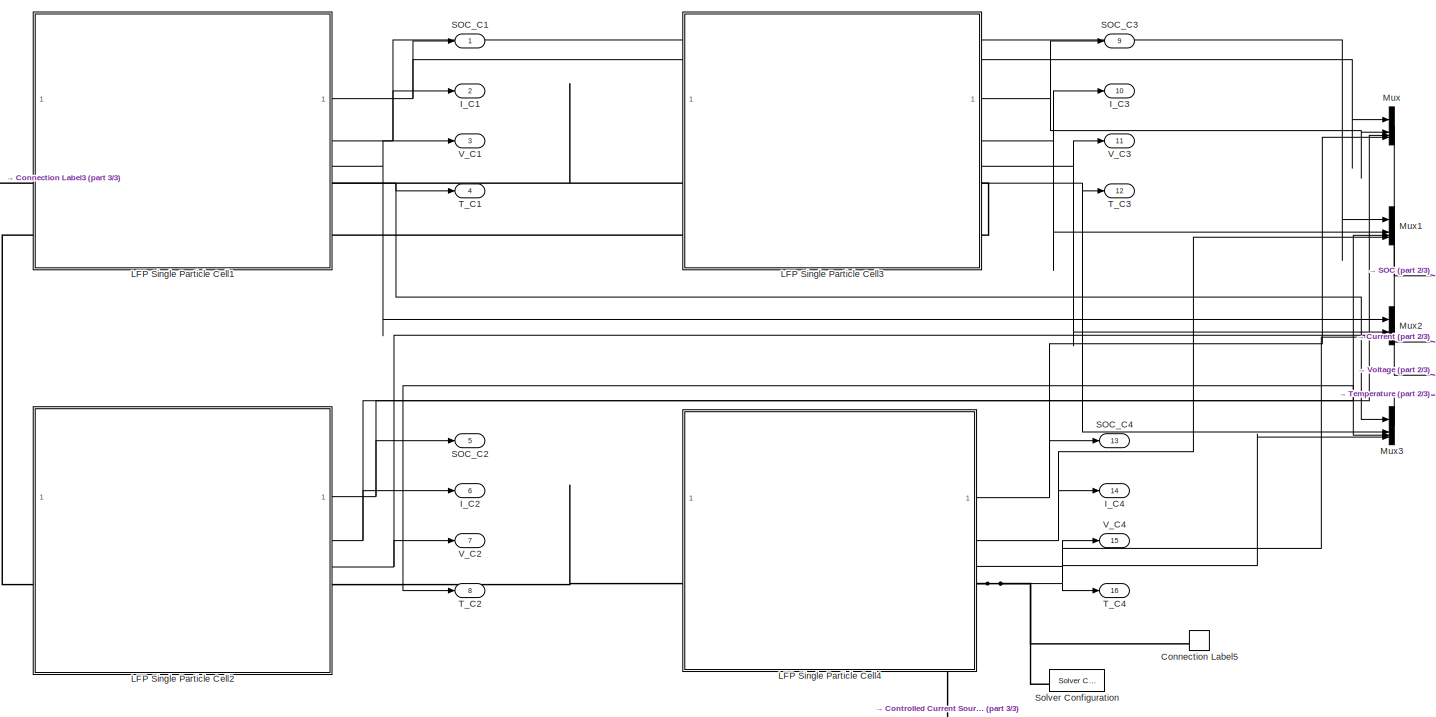
[diagram: root canvas - part 1/3, center side, full height]
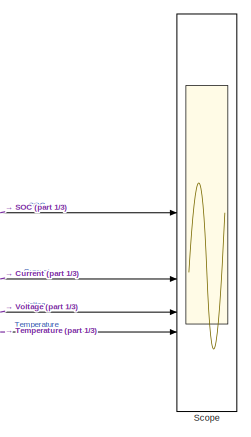
[diagram: root canvas - part 2/3, middle right region]
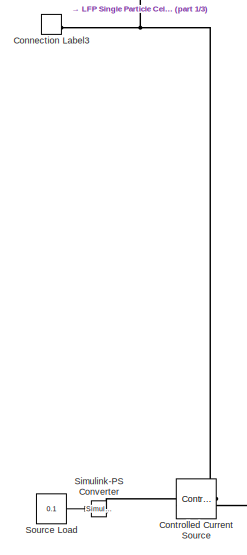
[diagram: root canvas - part 3/3, middle left region]
MODEL slx_9bfc34b73657
KIND model
CONFIG AbsTol = auto
CONFIG EnableMultiTasking = off
CONFIG FixedStep = 1e-6
CONFIG MaxStep = auto
CONFIG MinStep = auto
CONFIG RelTol = 1e-3
CONFIG SampleTimeConstraint = Unconstrained
CONFIG SolverName = ode23t
CONFIG StartTime = 0.0
CONFIG StopTime = 50
BLOCK [ConnectionLabel] Connection Label3
  Label = p
BLOCK [ConnectionLabel] Connection Label5
  Label = n
BLOCK [Reference] Controlled Current Source  REF=fl_lib/Electrical/Electrical Sources/Controlled Current
Source
  SourceBlock = fl_lib/Electrical/Electrical Sources/Controlled Current\nSource
  SourceType = Controlled Current\nSource
BLOCK [Outport] I_C1
  Port = 2
BLOCK [Outport] I_C2
  Port = 6
BLOCK [Outport] I_C3
  Port = 10
BLOCK [Outport] I_C4
  Port = 14
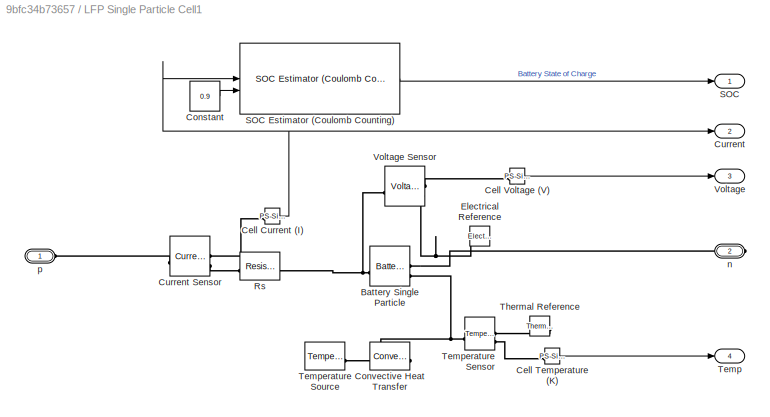
BLOCK [SubSystem] LFP Single Particle Cell1
BLOCK [Reference] LFP Single Particle Cell1/Battery Single Particle  REF=batt_lib/Cells/Electrochemical/Battery Single
Particle
  NameLocation = top
  SourceBlock = batt_lib/Cells/Electrochemical/Battery Single\nParticle
  SourceType = Battery Single\nParticle
BLOCK [Reference] LFP Single Particle Cell1/Cell Current (I)  REF=nesl_utility/PS-Simulink
Converter
  SourceBlock = nesl_utility/PS-Simulink\nConverter
  SourceType = PS-Simulink\nConverter
BLOCK [Reference] LFP Single Particle Cell1/Cell Temperature (K)  REF=nesl_utility/PS-Simulink
Converter
  SourceBlock = nesl_utility/PS-Simulink\nConverter
  SourceType = PS-Simulink\nConverter
BLOCK [Reference] LFP Single Particle Cell1/Cell Voltage (V)  REF=nesl_utility/PS-Simulink
Converter
  SourceBlock = nesl_utility/PS-Simulink\nConverter
  SourceType = PS-Simulink\nConverter
BLOCK [Constant] LFP Single Particle Cell1/Constant
  Value = 0.9
BLOCK [Reference] LFP Single Particle Cell1/Convective Heat Transfer  REF=fl_lib/Thermal/Thermal Elements/Convective Heat
Transfer
  NameLocation = top
  SourceBlock = fl_lib/Thermal/Thermal Elements/Convective Heat\nTransfer
  SourceType = Convective Heat\nTransfer
BLOCK [Outport] LFP Single Particle Cell1/Current
  Port = 2
BLOCK [Reference] LFP Single Particle Cell1/Current Sensor  REF=fl_lib/Electrical/Electrical Sensors/Current Sensor
  SourceBlock = fl_lib/Electrical/Electrical Sensors/Current Sensor
  SourceType = Current Sensor
BLOCK [Reference] LFP Single Particle Cell1/Electrical Reference  REF=fl_lib/Electrical/Electrical Elements/Electrical Reference
  NameLocation = top
  SourceBlock = fl_lib/Electrical/Electrical Elements/Electrical Reference
  SourceType = Electrical Reference
BLOCK [Reference] LFP Single Particle Cell1/Rs  REF=fl_lib/Electrical/Electrical Elements/Resistor
  SourceBlock = fl_lib/Electrical/Electrical Elements/Resistor
  SourceType = Resistor
BLOCK [Outport] LFP Single Particle Cell1/SOC
BLOCK [Reference] LFP Single Particle Cell1/SOC Estimator (Coulomb Counting)  REF=BatteryEstimators/SOC Estimator
(Coulomb Counting)
  LibrarySourceBlock = batt_sl_lib/Estimators/SOC Estimator\n(Coulomb Counting)
  SourceBlock = BatteryEstimators/SOC Estimator\n(Coulomb Counting)
  SourceType = SOC Estimator (Coulomb Counting)
BLOCK [Outport] LFP Single Particle Cell1/Temp
  Port = 4
BLOCK [Reference] LFP Single Particle Cell1/Temperature Sensor  REF=fl_lib/Thermal/Thermal Sensors/Temperature Sensor
  SourceBlock = fl_lib/Thermal/Thermal Sensors/Temperature Sensor
  SourceType = Temperature Sensor
BLOCK [Reference] LFP Single Particle Cell1/Temperature Source  REF=fl_lib/Thermal/Thermal Sources/Temperature Source
  SourceBlock = fl_lib/Thermal/Thermal Sources/Temperature Source
  SourceType = Temperature Source
BLOCK [Reference] LFP Single Particle Cell1/Thermal Reference  REF=fl_lib/Thermal/Thermal Elements/Thermal Reference
  NameLocation = top
  SourceBlock = fl_lib/Thermal/Thermal Elements/Thermal Reference
  SourceType = Thermal Reference
BLOCK [Outport] LFP Single Particle Cell1/Voltage
  Port = 3
BLOCK [Reference] LFP Single Particle Cell1/Voltage Sensor  REF=fl_lib/Electrical/Electrical Sensors/Voltage Sensor
  NameLocation = top
  SourceBlock = fl_lib/Electrical/Electrical Sensors/Voltage Sensor
  SourceType = Voltage Sensor
BLOCK [PMIOPort] LFP Single Particle Cell1/n
  Port = 2
  Side = Right
BLOCK [PMIOPort] LFP Single Particle Cell1/p
  Side = Left
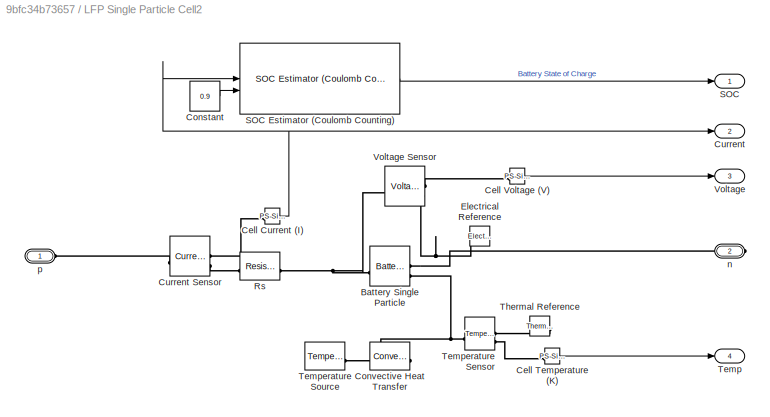
BLOCK [SubSystem] LFP Single Particle Cell2
BLOCK [Reference] LFP Single Particle Cell2/Battery Single Particle  REF=batt_lib/Cells/Electrochemical/Battery Single
Particle
  NameLocation = top
  SourceBlock = batt_lib/Cells/Electrochemical/Battery Single\nParticle
  SourceType = Battery Single\nParticle
BLOCK [Reference] LFP Single Particle Cell2/Cell Current (I)  REF=nesl_utility/PS-Simulink
Converter
  SourceBlock = nesl_utility/PS-Simulink\nConverter
  SourceType = PS-Simulink\nConverter
BLOCK [Reference] LFP Single Particle Cell2/Cell Temperature (K)  REF=nesl_utility/PS-Simulink
Converter
  SourceBlock = nesl_utility/PS-Simulink\nConverter
  SourceType = PS-Simulink\nConverter
BLOCK [Reference] LFP Single Particle Cell2/Cell Voltage (V)  REF=nesl_utility/PS-Simulink
Converter
  SourceBlock = nesl_utility/PS-Simulink\nConverter
  SourceType = PS-Simulink\nConverter
BLOCK [Constant] LFP Single Particle Cell2/Constant
  Value = 0.9
BLOCK [Reference] LFP Single Particle Cell2/Convective Heat Transfer  REF=fl_lib/Thermal/Thermal Elements/Convective Heat
Transfer
  NameLocation = top
  SourceBlock = fl_lib/Thermal/Thermal Elements/Convective Heat\nTransfer
  SourceType = Convective Heat\nTransfer
BLOCK [Outport] LFP Single Particle Cell2/Current
  Port = 2
BLOCK [Reference] LFP Single Particle Cell2/Current Sensor  REF=fl_lib/Electrical/Electrical Sensors/Current Sensor
  SourceBlock = fl_lib/Electrical/Electrical Sensors/Current Sensor
  SourceType = Current Sensor
BLOCK [Reference] LFP Single Particle Cell2/Electrical Reference  REF=fl_lib/Electrical/Electrical Elements/Electrical Reference
  NameLocation = top
  SourceBlock = fl_lib/Electrical/Electrical Elements/Electrical Reference
  SourceType = Electrical Reference
BLOCK [Reference] LFP Single Particle Cell2/Rs  REF=fl_lib/Electrical/Electrical Elements/Resistor
  SourceBlock = fl_lib/Electrical/Electrical Elements/Resistor
  SourceType = Resistor
BLOCK [Outport] LFP Single Particle Cell2/SOC
BLOCK [Reference] LFP Single Particle Cell2/SOC Estimator (Coulomb Counting)  REF=BatteryEstimators/SOC Estimator
(Coulomb Counting)
  LibrarySourceBlock = batt_sl_lib/Estimators/SOC Estimator\n(Coulomb Counting)
  SourceBlock = BatteryEstimators/SOC Estimator\n(Coulomb Counting)
  SourceType = SOC Estimator (Coulomb Counting)
BLOCK [Outport] LFP Single Particle Cell2/Temp
  Port = 4
BLOCK [Reference] LFP Single Particle Cell2/Temperature Sensor  REF=fl_lib/Thermal/Thermal Sensors/Temperature Sensor
  SourceBlock = fl_lib/Thermal/Thermal Sensors/Temperature Sensor
  SourceType = Temperature Sensor
BLOCK [Reference] LFP Single Particle Cell2/Temperature Source  REF=fl_lib/Thermal/Thermal Sources/Temperature Source
  SourceBlock = fl_lib/Thermal/Thermal Sources/Temperature Source
  SourceType = Temperature Source
BLOCK [Reference] LFP Single Particle Cell2/Thermal Reference  REF=fl_lib/Thermal/Thermal Elements/Thermal Reference
  NameLocation = top
  SourceBlock = fl_lib/Thermal/Thermal Elements/Thermal Reference
  SourceType = Thermal Reference
BLOCK [Outport] LFP Single Particle Cell2/Voltage
  Port = 3
BLOCK [Reference] LFP Single Particle Cell2/Voltage Sensor  REF=fl_lib/Electrical/Electrical Sensors/Voltage Sensor
  NameLocation = top
  SourceBlock = fl_lib/Electrical/Electrical Sensors/Voltage Sensor
  SourceType = Voltage Sensor
BLOCK [PMIOPort] LFP Single Particle Cell2/n
  Port = 2
  Side = Right
BLOCK [PMIOPort] LFP Single Particle Cell2/p
  Side = Left
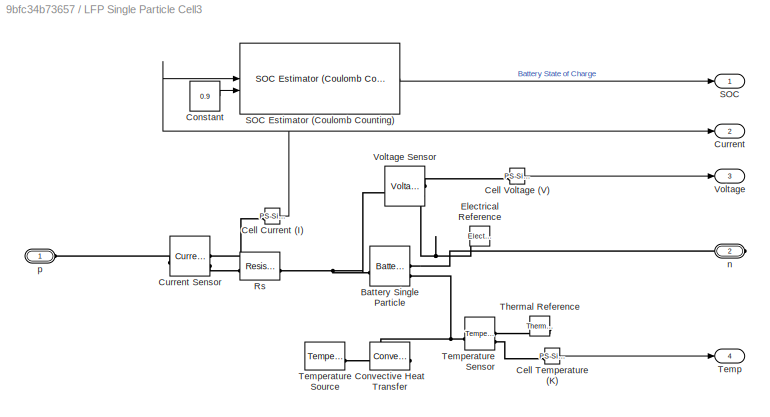
BLOCK [SubSystem] LFP Single Particle Cell3
BLOCK [Reference] LFP Single Particle Cell3/Battery Single Particle  REF=batt_lib/Cells/Electrochemical/Battery Single
Particle
  NameLocation = top
  SourceBlock = batt_lib/Cells/Electrochemical/Battery Single\nParticle
  SourceType = Battery Single\nParticle
BLOCK [Reference] LFP Single Particle Cell3/Cell Current (I)  REF=nesl_utility/PS-Simulink
Converter
  SourceBlock = nesl_utility/PS-Simulink\nConverter
  SourceType = PS-Simulink\nConverter
BLOCK [Reference] LFP Single Particle Cell3/Cell Temperature (K)  REF=nesl_utility/PS-Simulink
Converter
  SourceBlock = nesl_utility/PS-Simulink\nConverter
  SourceType = PS-Simulink\nConverter
BLOCK [Reference] LFP Single Particle Cell3/Cell Voltage (V)  REF=nesl_utility/PS-Simulink
Converter
  SourceBlock = nesl_utility/PS-Simulink\nConverter
  SourceType = PS-Simulink\nConverter
BLOCK [Constant] LFP Single Particle Cell3/Constant
  Value = 0.9
BLOCK [Reference] LFP Single Particle Cell3/Convective Heat Transfer  REF=fl_lib/Thermal/Thermal Elements/Convective Heat
Transfer
  NameLocation = top
  SourceBlock = fl_lib/Thermal/Thermal Elements/Convective Heat\nTransfer
  SourceType = Convective Heat\nTransfer
BLOCK [Outport] LFP Single Particle Cell3/Current
  Port = 2
BLOCK [Reference] LFP Single Particle Cell3/Current Sensor  REF=fl_lib/Electrical/Electrical Sensors/Current Sensor
  SourceBlock = fl_lib/Electrical/Electrical Sensors/Current Sensor
  SourceType = Current Sensor
BLOCK [Reference] LFP Single Particle Cell3/Electrical Reference  REF=fl_lib/Electrical/Electrical Elements/Electrical Reference
  NameLocation = top
  SourceBlock = fl_lib/Electrical/Electrical Elements/Electrical Reference
  SourceType = Electrical Reference
BLOCK [Reference] LFP Single Particle Cell3/Rs  REF=fl_lib/Electrical/Electrical Elements/Resistor
  SourceBlock = fl_lib/Electrical/Electrical Elements/Resistor
  SourceType = Resistor
BLOCK [Outport] LFP Single Particle Cell3/SOC
BLOCK [Reference] LFP Single Particle Cell3/SOC Estimator (Coulomb Counting)  REF=BatteryEstimators/SOC Estimator
(Coulomb Counting)
  LibrarySourceBlock = batt_sl_lib/Estimators/SOC Estimator\n(Coulomb Counting)
  SourceBlock = BatteryEstimators/SOC Estimator\n(Coulomb Counting)
  SourceType = SOC Estimator (Coulomb Counting)
BLOCK [Outport] LFP Single Particle Cell3/Temp
  Port = 4
BLOCK [Reference] LFP Single Particle Cell3/Temperature Sensor  REF=fl_lib/Thermal/Thermal Sensors/Temperature Sensor
  SourceBlock = fl_lib/Thermal/Thermal Sensors/Temperature Sensor
  SourceType = Temperature Sensor
BLOCK [Reference] LFP Single Particle Cell3/Temperature Source  REF=fl_lib/Thermal/Thermal Sources/Temperature Source
  SourceBlock = fl_lib/Thermal/Thermal Sources/Temperature Source
  SourceType = Temperature Source
BLOCK [Reference] LFP Single Particle Cell3/Thermal Reference  REF=fl_lib/Thermal/Thermal Elements/Thermal Reference
  NameLocation = top
  SourceBlock = fl_lib/Thermal/Thermal Elements/Thermal Reference
  SourceType = Thermal Reference
BLOCK [Outport] LFP Single Particle Cell3/Voltage
  Port = 3
BLOCK [Reference] LFP Single Particle Cell3/Voltage Sensor  REF=fl_lib/Electrical/Electrical Sensors/Voltage Sensor
  NameLocation = top
  SourceBlock = fl_lib/Electrical/Electrical Sensors/Voltage Sensor
  SourceType = Voltage Sensor
BLOCK [PMIOPort] LFP Single Particle Cell3/n
  Port = 2
  Side = Right
BLOCK [PMIOPort] LFP Single Particle Cell3/p
  Side = Left
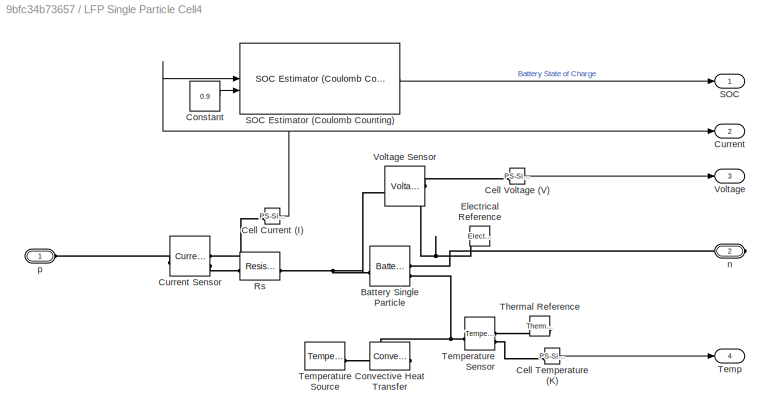
BLOCK [SubSystem] LFP Single Particle Cell4
BLOCK [Reference] LFP Single Particle Cell4/Battery Single Particle  REF=batt_lib/Cells/Electrochemical/Battery Single
Particle
  NameLocation = top
  SourceBlock = batt_lib/Cells/Electrochemical/Battery Single\nParticle
  SourceType = Battery Single\nParticle
BLOCK [Reference] LFP Single Particle Cell4/Cell Current (I)  REF=nesl_utility/PS-Simulink
Converter
  SourceBlock = nesl_utility/PS-Simulink\nConverter
  SourceType = PS-Simulink\nConverter
BLOCK [Reference] LFP Single Particle Cell4/Cell Temperature (K)  REF=nesl_utility/PS-Simulink
Converter
  SourceBlock = nesl_utility/PS-Simulink\nConverter
  SourceType = PS-Simulink\nConverter
BLOCK [Reference] LFP Single Particle Cell4/Cell Voltage (V)  REF=nesl_utility/PS-Simulink
Converter
  SourceBlock = nesl_utility/PS-Simulink\nConverter
  SourceType = PS-Simulink\nConverter
BLOCK [Constant] LFP Single Particle Cell4/Constant
  Value = 0.9
BLOCK [Reference] LFP Single Particle Cell4/Convective Heat Transfer  REF=fl_lib/Thermal/Thermal Elements/Convective Heat
Transfer
  NameLocation = top
  SourceBlock = fl_lib/Thermal/Thermal Elements/Convective Heat\nTransfer
  SourceType = Convective Heat\nTransfer
BLOCK [Outport] LFP Single Particle Cell4/Current
  Port = 2
BLOCK [Reference] LFP Single Particle Cell4/Current Sensor  REF=fl_lib/Electrical/Electrical Sensors/Current Sensor
  SourceBlock = fl_lib/Electrical/Electrical Sensors/Current Sensor
  SourceType = Current Sensor
BLOCK [Reference] LFP Single Particle Cell4/Electrical Reference  REF=fl_lib/Electrical/Electrical Elements/Electrical Reference
  NameLocation = top
  SourceBlock = fl_lib/Electrical/Electrical Elements/Electrical Reference
  SourceType = Electrical Reference
BLOCK [Reference] LFP Single Particle Cell4/Rs  REF=fl_lib/Electrical/Electrical Elements/Resistor
  SourceBlock = fl_lib/Electrical/Electrical Elements/Resistor
  SourceType = Resistor
BLOCK [Outport] LFP Single Particle Cell4/SOC
BLOCK [Reference] LFP Single Particle Cell4/SOC Estimator (Coulomb Counting)  REF=BatteryEstimators/SOC Estimator
(Coulomb Counting)
  LibrarySourceBlock = batt_sl_lib/Estimators/SOC Estimator\n(Coulomb Counting)
  SourceBlock = BatteryEstimators/SOC Estimator\n(Coulomb Counting)
  SourceType = SOC Estimator (Coulomb Counting)
BLOCK [Outport] LFP Single Particle Cell4/Temp
  Port = 4
BLOCK [Reference] LFP Single Particle Cell4/Temperature Sensor  REF=fl_lib/Thermal/Thermal Sensors/Temperature Sensor
  SourceBlock = fl_lib/Thermal/Thermal Sensors/Temperature Sensor
  SourceType = Temperature Sensor
BLOCK [Reference] LFP Single Particle Cell4/Temperature Source  REF=fl_lib/Thermal/Thermal Sources/Temperature Source
  SourceBlock = fl_lib/Thermal/Thermal Sources/Temperature Source
  SourceType = Temperature Source
BLOCK [Reference] LFP Single Particle Cell4/Thermal Reference  REF=fl_lib/Thermal/Thermal Elements/Thermal Reference
  NameLocation = top
  SourceBlock = fl_lib/Thermal/Thermal Elements/Thermal Reference
  SourceType = Thermal Reference
BLOCK [Outport] LFP Single Particle Cell4/Voltage
  Port = 3
BLOCK [Reference] LFP Single Particle Cell4/Voltage Sensor  REF=fl_lib/Electrical/Electrical Sensors/Voltage Sensor
  NameLocation = top
  SourceBlock = fl_lib/Electrical/Electrical Sensors/Voltage Sensor
  SourceType = Voltage Sensor
BLOCK [PMIOPort] LFP Single Particle Cell4/n
  Port = 2
  Side = Right
BLOCK [PMIOPort] LFP Single Particle Cell4/p
  Side = Left
BLOCK [Mux] Mux
  DisplayOption = bar
BLOCK [Mux] Mux1
  DisplayOption = bar
BLOCK [Mux] Mux2
  DisplayOption = bar
BLOCK [Mux] Mux3
  DisplayOption = bar
BLOCK [Outport] SOC_C1
BLOCK [Outport] SOC_C2
  Port = 5
BLOCK [Outport] SOC_C3
  Port = 9
BLOCK [Outport] SOC_C4
  Port = 13
BLOCK [Scope] Scope
  Floating = off
  NumInputPorts = 4
  ScopeSpecificationString = Simulink.scopes.TimeScopeBlockCfg('CurrentConfiguration', extmgr.ConfigurationSet(extmgr.Configuration('Core','General UI',true,'FigureColor',[1 1 1]),extmgr.Configuration('Core','Source UI',true),extmgr.Configuration('Sources','WiredSimulink',true),extmgr.Configuration('Visuals','Time Domain',true,'SerializedDisplays',{struct('MinYLimReal','0.55113','MaxYLimReal','0.93876','YLabelReal','','MinYLi...<+3804ch>
BLOCK [Reference] Simulink-PS Converter  REF=nesl_utility/Simulink-PS
Converter
  SourceBlock = nesl_utility/Simulink-PS\nConverter
  SourceType = Simulink-PS\nConverter
BLOCK [Reference] Solver Configuration  REF=nesl_utility/Solver
Configuration
  SourceBlock = nesl_utility/Solver\nConfiguration
  SourceType = Solver\nConfiguration
BLOCK [Constant] Source Load
  Value = 0.1
BLOCK [Outport] T_C1
  Port = 4
BLOCK [Outport] T_C2
  Port = 8
BLOCK [Outport] T_C3
  Port = 12
BLOCK [Outport] T_C4
  Port = 16
BLOCK [Outport] V_C1
  Port = 3
BLOCK [Outport] V_C2
  Port = 7
BLOCK [Outport] V_C3
  Port = 11
BLOCK [Outport] V_C4
  Port = 15
NET LFP Single Particle Cell1/Cell Current (I):1 -> LFP Single Particle Cell1/Current:1, LFP Single Particle Cell1/SOC Estimator (Coulomb Counting):1
LINE LFP Single Particle Cell1/Cell Temperature (K):1 -> LFP Single Particle Cell1/Temp:1
LINE LFP Single Particle Cell1/Cell Voltage (V):1 -> LFP Single Particle Cell1/Voltage:1
LINE LFP Single Particle Cell1/Constant:1 -> LFP Single Particle Cell1/SOC Estimator (Coulomb Counting):2
LINE LFP Single Particle Cell1/SOC Estimator (Coulomb Counting):1 -> LFP Single Particle Cell1/SOC:1
NET LFP Single Particle Cell1:1 -> Mux:1, SOC_C1:1
NET LFP Single Particle Cell1:2 -> I_C1:1, Mux1:1
NET LFP Single Particle Cell1:3 -> Mux2:1, V_C1:1
NET LFP Single Particle Cell1:4 -> Mux3:1, T_C1:1
NET LFP Single Particle Cell2/Cell Current (I):1 -> LFP Single Particle Cell2/Current:1, LFP Single Particle Cell2/SOC Estimator (Coulomb Counting):1
LINE LFP Single Particle Cell2/Cell Temperature (K):1 -> LFP Single Particle Cell2/Temp:1
LINE LFP Single Particle Cell2/Cell Voltage (V):1 -> LFP Single Particle Cell2/Voltage:1
LINE LFP Single Particle Cell2/Constant:1 -> LFP Single Particle Cell2/SOC Estimator (Coulomb Counting):2
LINE LFP Single Particle Cell2/SOC Estimator (Coulomb Counting):1 -> LFP Single Particle Cell2/SOC:1
NET LFP Single Particle Cell2:1 -> Mux:3, SOC_C2:1
NET LFP Single Particle Cell2:2 -> I_C2:1, Mux1:3
NET LFP Single Particle Cell2:3 -> Mux2:3, V_C2:1
NET LFP Single Particle Cell2:4 -> Mux3:3, T_C2:1
NET LFP Single Particle Cell3/Cell Current (I):1 -> LFP Single Particle Cell3/Current:1, LFP Single Particle Cell3/SOC Estimator (Coulomb Counting):1
LINE LFP Single Particle Cell3/Cell Temperature (K):1 -> LFP Single Particle Cell3/Temp:1
LINE LFP Single Particle Cell3/Cell Voltage (V):1 -> LFP Single Particle Cell3/Voltage:1
LINE LFP Single Particle Cell3/Constant:1 -> LFP Single Particle Cell3/SOC Estimator (Coulomb Counting):2
LINE LFP Single Particle Cell3/SOC Estimator (Coulomb Counting):1 -> LFP Single Particle Cell3/SOC:1
NET LFP Single Particle Cell3:1 -> Mux:2, SOC_C3:1
NET LFP Single Particle Cell3:2 -> I_C3:1, Mux1:2
NET LFP Single Particle Cell3:3 -> Mux2:2, V_C3:1
NET LFP Single Particle Cell3:4 -> Mux3:2, T_C3:1
NET LFP Single Particle Cell4/Cell Current (I):1 -> LFP Single Particle Cell4/Current:1, LFP Single Particle Cell4/SOC Estimator (Coulomb Counting):1
LINE LFP Single Particle Cell4/Cell Temperature (K):1 -> LFP Single Particle Cell4/Temp:1
LINE LFP Single Particle Cell4/Cell Voltage (V):1 -> LFP Single Particle Cell4/Voltage:1
LINE LFP Single Particle Cell4/Constant:1 -> LFP Single Particle Cell4/SOC Estimator (Coulomb Counting):2
LINE LFP Single Particle Cell4/SOC Estimator (Coulomb Counting):1 -> LFP Single Particle Cell4/SOC:1
NET LFP Single Particle Cell4:1 -> Mux:4, SOC_C4:1
NET LFP Single Particle Cell4:2 -> I_C4:1, Mux1:4
NET LFP Single Particle Cell4:3 -> Mux2:4, V_C4:1
NET LFP Single Particle Cell4:4 -> Mux3:4, T_C4:1
LINE Mux1:1 -> Scope:2
LINE Mux2:1 -> Scope:3
LINE Mux3:1 -> Scope:4
LINE Mux:1 -> Scope:1
LINE Source Load:1 -> Simulink-PS Converter:1
PNET net1: Connection Label3:LConn1 -- Controlled Current Source:RConn2 -- LFP Single Particle Cell1:LConn1
PNET net2: Connection Label5:LConn1 -- Controlled Current Source:LConn1 -- LFP Single Particle Cell4:RConn1 -- Solver Configuration:RConn1
PLINE Controlled Current Source:RConn1 -- Simulink-PS Converter:RConn1
PNET net3: LFP Single Particle Cell1/Battery Single Particle:LConn1 -- LFP Single Particle Cell1/Rs:LConn1 -- LFP Single Particle Cell1/Voltage Sensor:LConn1
PNET net4: LFP Single Particle Cell1/Battery Single Particle:RConn1 -- LFP Single Particle Cell1/Electrical Reference:LConn1 -- LFP Single Particle Cell1/Voltage Sensor:RConn2 -- LFP Single Particle Cell1/n:RConn1
PNET net5: LFP Single Particle Cell1/Battery Single Particle:RConn2 -- LFP Single Particle Cell1/Convective Heat Transfer:LConn1 -- LFP Single Particle Cell1/Temperature Sensor:LConn1
PLINE LFP Single Particle Cell1/Cell Current (I):LConn1 -- LFP Single Particle Cell1/Current Sensor:RConn1
PLINE LFP Single Particle Cell1/Cell Temperature (K):LConn1 -- LFP Single Particle Cell1/Temperature Sensor:RConn2
PLINE LFP Single Particle Cell1/Cell Voltage (V):LConn1 -- LFP Single Particle Cell1/Voltage Sensor:RConn1
PLINE LFP Single Particle Cell1/Convective Heat Transfer:RConn1 -- LFP Single Particle Cell1/Temperature Source:LConn1
PLINE LFP Single Particle Cell1/Current Sensor:LConn1 -- LFP Single Particle Cell1/p:RConn1
PLINE LFP Single Particle Cell1/Current Sensor:RConn2 -- LFP Single Particle Cell1/Rs:RConn1
PLINE LFP Single Particle Cell1/Temperature Sensor:RConn1 -- LFP Single Particle Cell1/Thermal Reference:LConn1
PLINE LFP Single Particle Cell1:RConn1 -- LFP Single Particle Cell3:LConn1
PNET net6: LFP Single Particle Cell2/Battery Single Particle:LConn1 -- LFP Single Particle Cell2/Rs:LConn1 -- LFP Single Particle Cell2/Voltage Sensor:LConn1
PNET net7: LFP Single Particle Cell2/Battery Single Particle:RConn1 -- LFP Single Particle Cell2/Electrical Reference:LConn1 -- LFP Single Particle Cell2/Voltage Sensor:RConn2 -- LFP Single Particle Cell2/n:RConn1
PNET net8: LFP Single Particle Cell2/Battery Single Particle:RConn2 -- LFP Single Particle Cell2/Convective Heat Transfer:LConn1 -- LFP Single Particle Cell2/Temperature Sensor:LConn1
PLINE LFP Single Particle Cell2/Cell Current (I):LConn1 -- LFP Single Particle Cell2/Current Sensor:RConn1
PLINE LFP Single Particle Cell2/Cell Temperature (K):LConn1 -- LFP Single Particle Cell2/Temperature Sensor:RConn2
PLINE LFP Single Particle Cell2/Cell Voltage (V):LConn1 -- LFP Single Particle Cell2/Voltage Sensor:RConn1
PLINE LFP Single Particle Cell2/Convective Heat Transfer:RConn1 -- LFP Single Particle Cell2/Temperature Source:LConn1
PLINE LFP Single Particle Cell2/Current Sensor:LConn1 -- LFP Single Particle Cell2/p:RConn1
PLINE LFP Single Particle Cell2/Current Sensor:RConn2 -- LFP Single Particle Cell2/Rs:RConn1
PLINE LFP Single Particle Cell2/Temperature Sensor:RConn1 -- LFP Single Particle Cell2/Thermal Reference:LConn1
PLINE LFP Single Particle Cell2:LConn1 -- LFP Single Particle Cell3:RConn1
PLINE LFP Single Particle Cell2:RConn1 -- LFP Single Particle Cell4:LConn1
PNET net9: LFP Single Particle Cell3/Battery Single Particle:LConn1 -- LFP Single Particle Cell3/Rs:LConn1 -- LFP Single Particle Cell3/Voltage Sensor:LConn1
PNET net10: LFP Single Particle Cell3/Battery Single Particle:RConn1 -- LFP Single Particle Cell3/Electrical Reference:LConn1 -- LFP Single Particle Cell3/Voltage Sensor:RConn2 -- LFP Single Particle Cell3/n:RConn1
PNET net11: LFP Single Particle Cell3/Battery Single Particle:RConn2 -- LFP Single Particle Cell3/Convective Heat Transfer:LConn1 -- LFP Single Particle Cell3/Temperature Sensor:LConn1
PLINE LFP Single Particle Cell3/Cell Current (I):LConn1 -- LFP Single Particle Cell3/Current Sensor:RConn1
PLINE LFP Single Particle Cell3/Cell Temperature (K):LConn1 -- LFP Single Particle Cell3/Temperature Sensor:RConn2
PLINE LFP Single Particle Cell3/Cell Voltage (V):LConn1 -- LFP Single Particle Cell3/Voltage Sensor:RConn1
PLINE LFP Single Particle Cell3/Convective Heat Transfer:RConn1 -- LFP Single Particle Cell3/Temperature Source:LConn1
PLINE LFP Single Particle Cell3/Current Sensor:LConn1 -- LFP Single Particle Cell3/p:RConn1
PLINE LFP Single Particle Cell3/Current Sensor:RConn2 -- LFP Single Particle Cell3/Rs:RConn1
PLINE LFP Single Particle Cell3/Temperature Sensor:RConn1 -- LFP Single Particle Cell3/Thermal Reference:LConn1
PNET net12: LFP Single Particle Cell4/Battery Single Particle:LConn1 -- LFP Single Particle Cell4/Rs:LConn1 -- LFP Single Particle Cell4/Voltage Sensor:LConn1
PNET net13: LFP Single Particle Cell4/Battery Single Particle:RConn1 -- LFP Single Particle Cell4/Electrical Reference:LConn1 -- LFP Single Particle Cell4/Voltage Sensor:RConn2 -- LFP Single Particle Cell4/n:RConn1
PNET net14: LFP Single Particle Cell4/Battery Single Particle:RConn2 -- LFP Single Particle Cell4/Convective Heat Transfer:LConn1 -- LFP Single Particle Cell4/Temperature Sensor:LConn1
PLINE LFP Single Particle Cell4/Cell Current (I):LConn1 -- LFP Single Particle Cell4/Current Sensor:RConn1
PLINE LFP Single Particle Cell4/Cell Temperature (K):LConn1 -- LFP Single Particle Cell4/Temperature Sensor:RConn2
PLINE LFP Single Particle Cell4/Cell Voltage (V):LConn1 -- LFP Single Particle Cell4/Voltage Sensor:RConn1
PLINE LFP Single Particle Cell4/Convective Heat Transfer:RConn1 -- LFP Single Particle Cell4/Temperature Source:LConn1
PLINE LFP Single Particle Cell4/Current Sensor:LConn1 -- LFP Single Particle Cell4/p:RConn1
PLINE LFP Single Particle Cell4/Current Sensor:RConn2 -- LFP Single Particle Cell4/Rs:RConn1
PLINE LFP Single Particle Cell4/Temperature Sensor:RConn1 -- LFP Single Particle Cell4/Thermal Reference:LConn1
note: NET lines group one-source signal fan-out (src -> all destinations, sorted); 1:1 wires keep LINE; PNET lines group multi-terminal physical nets as a canonical sorted terminal list (undirected conserving connections); 2-terminal nets keep the pairwise PLINE form
